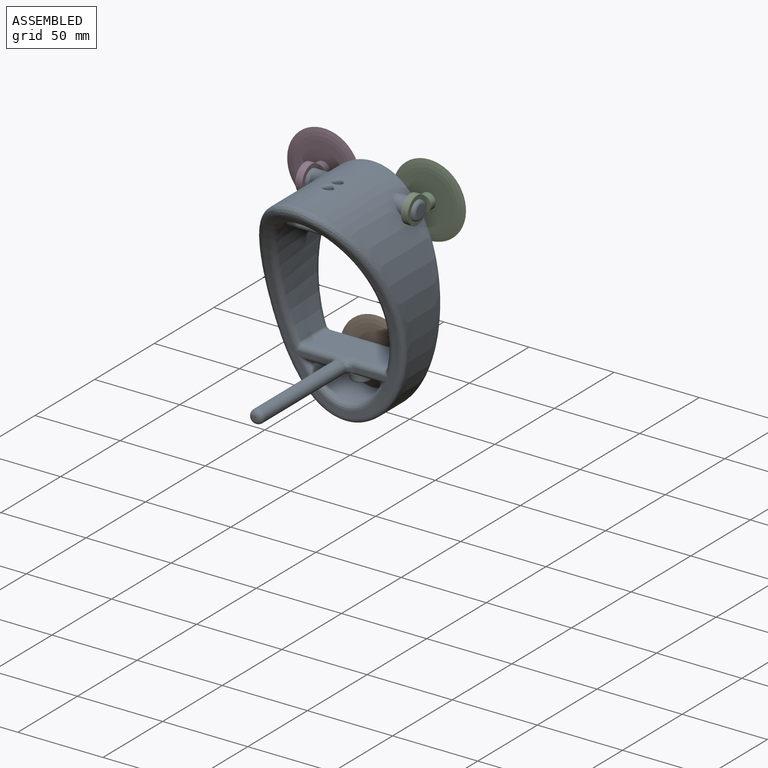
[diagram: assembled view]
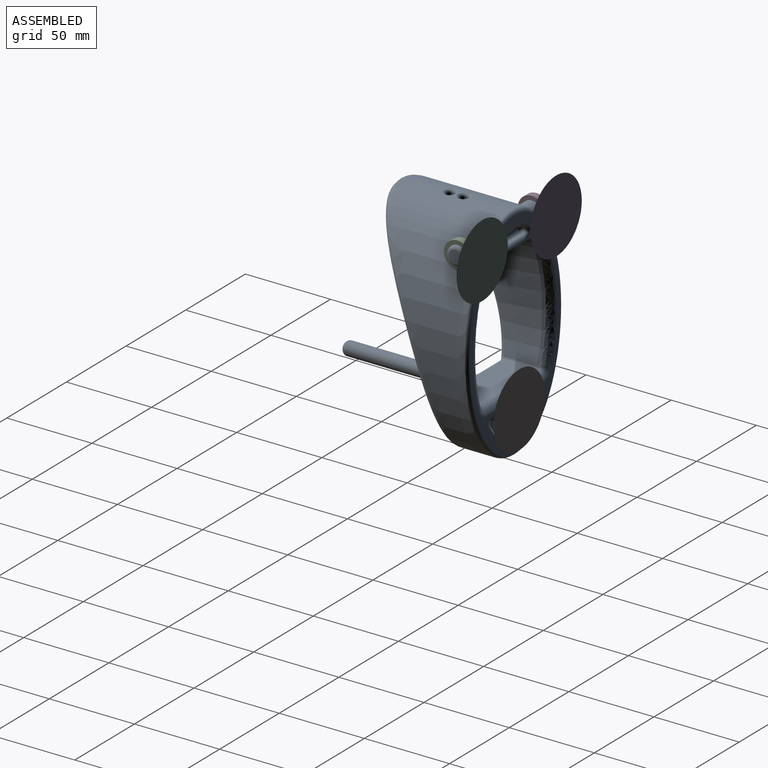
[diagram: assembled view, second angle]
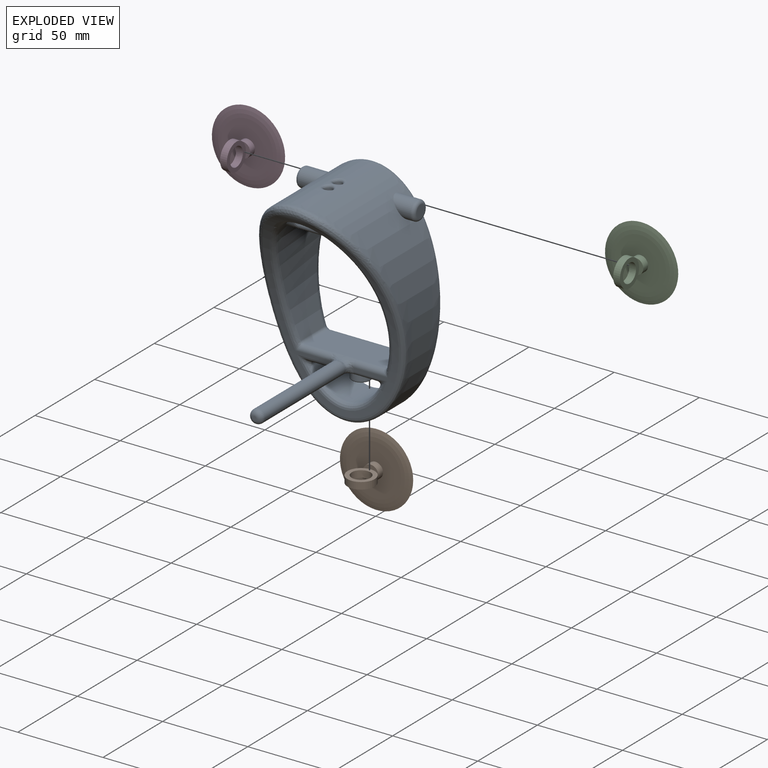
[diagram: exploded view]
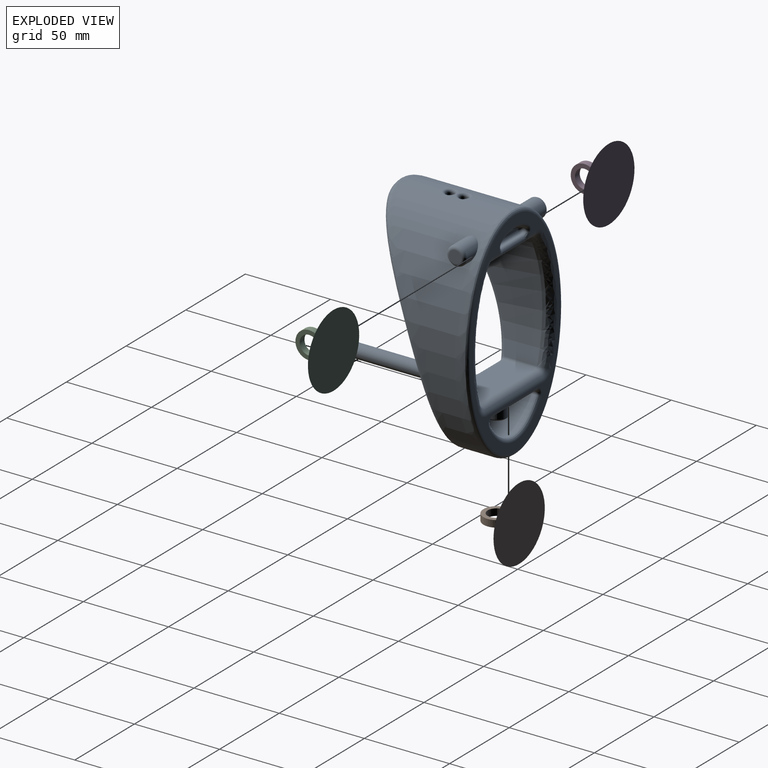
[diagram: exploded view, second angle]
ASSEMBLY  parts=4 mates=3
PART A: 111 faces, bbox 80x101.7x130 mm
  f0: extruded ~20.58x3.34mm, area 23.4mm2, adj f1,f108,f109,f110
  f1: bspline ~28.21x7.26mm, area 71.7mm2, adj f0,f2,f106,f107
  f2: torus R=4mm, axis (0,-1,0), area 12.9mm2, adj f1,f3,f106,f110
  f3: bspline ~4.63x4.46mm, area 12.8mm2, adj f2,f4,f11,f110
  f4: cylinder r=2mm len=18.35mm, axis (1,0,0), area 84.4mm2, adj f3,f5,f10,f11
  f5: plane 18.35x0.3mm, normal (0,0,1), area 5.5mm2, adj f4,f6,f108,f110
  f6: cylinder r=2mm len=18.35mm, axis (-1,0,0), area 62.5mm2, adj f5,f7,f8,f9
  f7: sphere r=2mm, area 10.3mm2, adj f6,f109,f110
  f8: sphere r=2mm, area 10.5mm2, adj f6,f108,f109
  f9: cylinder r=5.6mm len=18.35mm, axis (-1,0,0), area 0mm2, adj f6,f109
  f10: bspline ~4.63x4.46mm, area 12.8mm2, adj f4,f11,f107,f108
  f11: cylinder r=5mm len=35.27mm, axis (1,0,0), area 197.4mm2, adj f3,f4,f10,f12,f104,f105,f106
  f12: torus R=7mm, axis (0,-1,0), area 29.8mm2, adj f11,f13,f103,f106
  f13: bspline ~84.09x17.67mm, area 586.7mm2, adj f12,f14,f81,f106
  f14: torus R=7mm, axis (0,-1,0), area 37.5mm2, adj f13,f15,f80,f106
  f15: cylinder r=5mm len=47.43mm, axis (-1,0,0), area 372.5mm2, adj f14,f16,f79,f106
  f16: torus R=7mm, axis (0,-1,0), area 37.5mm2, adj f15,f17,f78,f106
  f17: cylinder r=2mm len=18.8mm, axis (0,1,0), area 47mm2, adj f16,f18,f79,f81
  f18: bspline ~2.59x1.98mm, area 1mm2, adj f17,f19,f77,f81
  f19: cylinder r=3mm len=20.25mm, axis (-1,0,0), area 91.9mm2, adj f18,f20,f58,f59,f77,f79
  f20: bspline ~7x3.06mm, area 14mm2, adj f19,f21,f57,f58
  f21: bspline ~3.95x3.51mm, area 7.1mm2, adj f20,f22,f55,f56,f57,f59
  f22: cylinder r=4mm len=68.36mm, axis (0,1,0), area 1688.2mm2, adj f21,f23,f45,f52,f53,f55,f57
  f23: bspline ~4.73x3.04mm, area 10.2mm2, adj f22,f24,f45,f55
  f24: bspline ~6.77x2.78mm, area 11.5mm2, adj f23,f25,f44,f45
  f25: bspline ~6.77x2.91mm, area 16.2mm2, adj f24,f26,f40,f44
  f26: bspline ~6.77x2.91mm, area 16.2mm2, adj f25,f27,f40,f56
  f27: cylinder r=3mm len=19.77mm, axis (-1,0,0), area 67.7mm2, adj f26,f28,f40,f56,f59
  f28: bspline ~8.13x5.62mm, area 10.4mm2, adj f27,f29,f39
  f29: bspline ~3.6x3.07mm, area 2.4mm2, adj f28,f30,f39,f40
  f30: cylinder r=2mm len=20.68mm, axis (0,1,0), area 87.7mm2, adj f29,f31,f38,f40
  f31: torus R=4mm, axis (0,-1,0), area 18.2mm2, adj f30,f32,f37,f106
  f32: cylinder r=2mm len=36.53mm, axis (1,0,0), area 114.8mm2, adj f31,f33,f40,f106
  f33: torus R=4mm, axis (0,-1,0), area 18.2mm2, adj f32,f34,f37,f106
  f34: cylinder r=2mm len=20.68mm, axis (0,1,0), area 87.7mm2, adj f33,f35,f38,f40
  f35: bspline ~3.6x3.07mm, area 2.4mm2, adj f34,f36,f39,f40
  f36: bspline ~8.13x5.62mm, area 10.5mm2, adj f35,f39,f44
  f37: bspline ~46.83x18.9mm, area 164.6mm2, adj f31,f33,f38,f106
  f38: extruded ~39.94x20.68mm, area 1053.2mm2, adj f30,f34,f37,f39
  f39: bspline ~55.47x27.54mm, area 283.9mm2, adj f28,f29,f35,f36,f38,f59
  f40: plane 36.7x21.53mm, normal (0,0,-1), area 688mm2, adj f25,f26,f27,f29,f30,f32,f34,f35
  f41: cylinder r=5.6mm len=11.2mm, axis (0,0,1), area 281.5mm2, adj f40,f42
  f42: torus R=4.6mm, axis (0,0,-1), area 51.7mm2, adj f41,f43
  f43: plane 9.2x9.2mm, normal (0,0,-1), area 66.5mm2, adj f42
  f44: cylinder r=3mm len=19.77mm, axis (-1,0,0), area 67.7mm2, adj f24,f25,f36,f40,f59
  f45: bspline ~4.56x3.58mm, area 7.1mm2, adj f22,f23,f24,f46,f52,f59
  f46: bspline ~7x3.06mm, area 14mm2, adj f45,f47,f51,f52
  f47: cylinder r=3mm len=20.25mm, axis (-1,0,0), area 91.9mm2, adj f46,f48,f50,f51,f59,f79
  f48: bspline ~4.76x3.53mm, area 5.2mm2, adj f47,f49,f50
  f49: bspline ~92.48x66.01mm, area 911.6mm2, adj f48,f59,f77,f81
  f50: bspline ~2.59x1.98mm, area 1mm2, adj f47,f48,f80,f81
  f51: bspline ~7x3.93mm, area 21.8mm2, adj f46,f47,f58,f79
  f52: bspline ~4.87x3.91mm, area 14.2mm2, adj f22,f45,f46,f57
  f53: torus R=1mm, axis (0,-1,0), area 86.2mm2, adj f22,f54
  f54: plane 2x2mm, normal (0,-1,0), area 3.1mm2, adj f53
  f55: bspline ~4.73x3.04mm, area 10.2mm2, adj f21,f22,f23,f56
  f56: bspline ~6.77x2.78mm, area 11.5mm2, adj f21,f26,f27,f55
  f57: bspline ~4.87x3.91mm, area 14.2mm2, adj f20,f21,f22,f52
  f58: bspline ~7x3.93mm, area 21.8mm2, adj f19,f20,f51,f79
  f59: cylinder r=190mm len=119.54mm, axis (-1,0,0), area 1322.1mm2, adj f19,f21,f27,f39,f44,f45,f47,f49
  f60: cylinder r=20mm len=21.73mm, axis (-1,0,0), area 53.8mm2, adj f59,f61
  f61: bspline ~31.87x8.43mm, area 159.9mm2, adj f60,f62,f76
  f62: extruded ~129.37x79.76mm, area 11343.9mm2, adj f61,f63,f66,f69,f72,f75,f76
  f63: cylinder r=5.6mm len=12.87mm, axis (-1,0,0), area 284.4mm2, adj f62,f64
  f64: torus R=3.6mm, axis (1,0,0), area 96.2mm2, adj f63,f65
  f65: plane 7.2x7.2mm, normal (1,0,0), area 40.7mm2, adj f64
  f66: cylinder r=5.6mm len=12.87mm, axis (-1,0,0), area 284.5mm2, adj f62,f67
  f67: torus R=3.6mm, axis (1,0,0), area 96.2mm2, adj f66,f68
  f68: plane 7.2x7.2mm, normal (-1,0,0), area 40.7mm2, adj f67
  f69: bspline ~8.24x7.81mm, area 44.3mm2, adj f62,f70
  f70: cylinder r=2.5mm len=7.61mm, axis (0,0,1), area 117.3mm2, adj f69,f71
  f71: bspline ~7.81x7.2mm, area 38mm2, adj f70,f81
  f72: bspline ~8.24x7.81mm, area 44.3mm2, adj f62,f73
  f73: cylinder r=2.5mm len=7.61mm, axis (0,0,1), area 117.3mm2, adj f72,f74
  f74: bspline ~7.81x7.2mm, area 38mm2, adj f73,f81
  f75: bspline ~130.01x80.02mm, area 1040.3mm2, adj f62,f106
  f76: bspline ~126.86x79.99mm, area 1588.3mm2, adj f59,f61,f62
  f77: bspline ~4.76x3.53mm, area 5.2mm2, adj f18,f19,f49
  f78: bspline ~84.09x17.67mm, area 586.7mm2, adj f16,f81,f105,f106
  f79: plane 47.43x18.8mm, normal (0,0,1), area 891.9mm2, adj f15,f17,f19,f47,f51,f58,f80
  f80: cylinder r=2mm len=18.8mm, axis (0,1,0), area 47mm2, adj f14,f50,f79,f81
  f81: extruded ~83.66x59.99mm, area 5569.9mm2, adj f13,f17,f18,f49,f50,f71,f74,f78
  f82: torus R=4mm, axis (0,-1,0), area 7.5mm2, adj f81,f83,f93,f102
  f83: bspline ~4.61x4.47mm, area 12.8mm2, adj f82,f84,f97,f102
  f84: cylinder r=2mm len=18.35mm, axis (-1,0,0), area 84.4mm2, adj f83,f85,f92,f97
  f85: plane 31.91x18.35mm, normal (0,0,1), area 490mm2, adj f84,f86,f89,f100,f101,f102
  f86: torus R=3.9mm, axis (0,0,-1), area 41.6mm2, adj f85,f87
  f87: cylinder r=2.5mm len=5mm, axis (0,0,1), area 34.6mm2, adj f86,f88
  f88: torus R=3.9mm, axis (0,0,-1), area 41.6mm2, adj f87,f104
  f89: torus R=3.9mm, axis (0,0,-1), area 41.6mm2, adj f85,f90
  f90: cylinder r=2.5mm len=5mm, axis (0,0,1), area 34.6mm2, adj f89,f91
  f91: torus R=3.9mm, axis (0,0,-1), area 41.6mm2, adj f90,f104
  f92: bspline ~4.61x4.47mm, area 12.8mm2, adj f84,f97,f99,f100
  f93: plane 2x1.44mm, normal (0,-1,0), area 1.4mm2, adj f81,f82,f97
  f94: torus R=7mm, axis (0,-1,0), area 4.5mm2, adj f81,f97,f103
  f95: cylinder r=2mm len=40mm, axis (0,1,0), area 79.6mm2, adj f81,f96,f104,f105
  f96: torus R=7mm, axis (0,-1,0), area 4.5mm2, adj f81,f95,f97
  f97: cylinder r=5mm len=35.27mm, axis (-1,0,0), area 185.8mm2, adj f81,f83,f84,f92,f93,f94,f96,f98
  f98: plane 2x1.44mm, normal (0,-1,0), area 1.4mm2, adj f81,f97,f99
  f99: torus R=4mm, axis (0,-1,0), area 7.5mm2, adj f81,f92,f98,f100
  f100: cylinder r=2mm len=32.67mm, axis (0,1,0), area 163.8mm2, adj f81,f85,f92,f99,f101
  f101: cylinder r=5.6mm len=20.58mm, axis (-1,0,0), area 125mm2, adj f81,f85,f100,f102
  f102: cylinder r=2mm len=32.67mm, axis (0,1,0), area 163.8mm2, adj f81,f82,f83,f85,f101
  f103: cylinder r=2mm len=40mm, axis (0,1,0), area 79.6mm2, adj f12,f81,f94,f104
  f104: plane 40x35.27mm, normal (0,0,-1), area 1315.1mm2, adj f11,f88,f91,f95,f97,f103
  f105: torus R=7mm, axis (0,-1,0), area 29.8mm2, adj f11,f78,f95,f106
  f106: plane 126.01x76.02mm, normal (0,1,0), area 1408.2mm2, adj f1,f2,f11,f12,f13,f14,f15,f16
  f107: torus R=4mm, axis (0,-1,0), area 12.9mm2, adj f1,f10,f106,f108
  f108: cylinder r=2mm len=3.66mm, axis (0,1,0), area 4.6mm2, adj f0,f5,f8,f10,f107
  f109: bspline ~24.99x5.86mm, area 70.7mm2, adj f0,f7,f8,f9
  f110: cylinder r=2mm len=3.66mm, axis (0,1,0), area 4.6mm2, adj f0,f2,f3,f5,f7
PART B: 9 faces, bbox 43x43x21 mm
  f0: plane 30.19x30.19mm, normal (0,0,1), area 652.4mm2, adj f2,f4
  f1: plane 43x43mm, normal (0,0,-1), area 1452.2mm2, adj f4
  f2: cylinder r=4.5mm len=9mm, axis (0,0,-1), area 113.1mm2, adj f0,f3
  f3: plane 9x9mm, normal (0,0,1), area 61mm2, adj f2,f6,f7,f8
  f4: torus R=15.1mm, axis (0,0,-1), area 749.2mm2, adj f0,f1
  f5: cylinder r=5.5mm len=11mm, axis (0,1,0), area 138.2mm2, adj f7,f8
  f6: cylinder r=8mm len=16mm, axis (0,1,0), area 198.5mm2, adj f3,f7,f8
  f7: plane 16x15.99mm, normal (0,-1,0), area 106mm2, adj f3,f5,f6
  f8: plane 16x15.99mm, normal (0,1,0), area 106mm2, adj f3,f5,f6
PART C: same geometry as B
PART D: same geometry as B
PLACE A t=(0,-1.55,0)mm
PLACE B rot(axis=(1,0,0),90deg) t=(0,0.84,-40)mm
PLACE C rot(axis=(0.58,-0.58,0.58),120deg) t=(31,0.84,51)mm
PLACE D rot(axis=(0.58,0.58,-0.58),120deg) t=(-31,0.84,51)mm
MATE fastened C.f5 <-> A.f9  axis (1,0,0) through (33,-12.15,51)mm
MATE fastened D.f5 <-> A.f9  axis (-1,0,0) through (-33,-12.15,51)mm
MATE fastened B.f5 <-> A.f41  axis (0,0,1) through (0,-12.15,-38)mm
